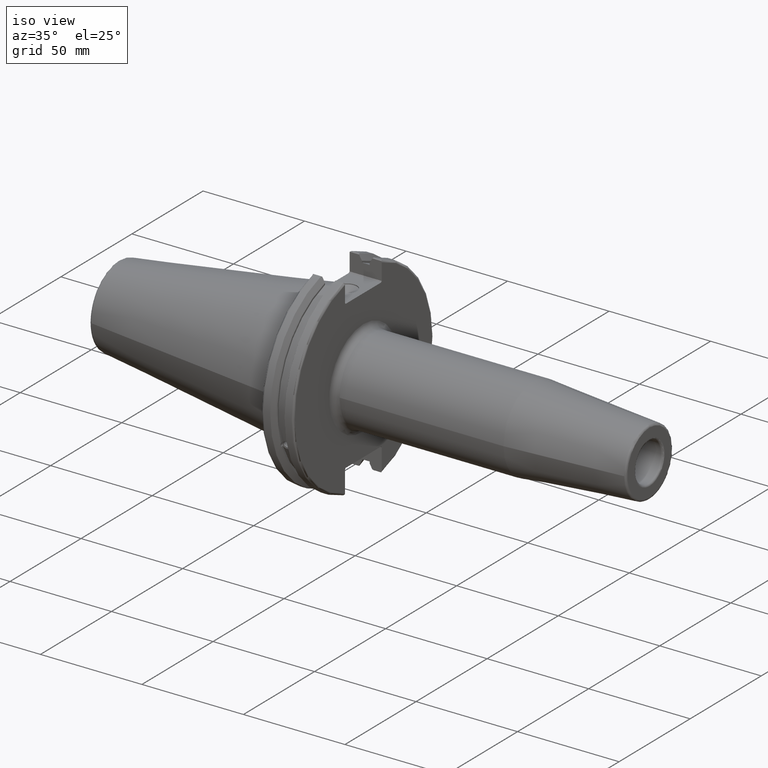
[diagram: clean part render]
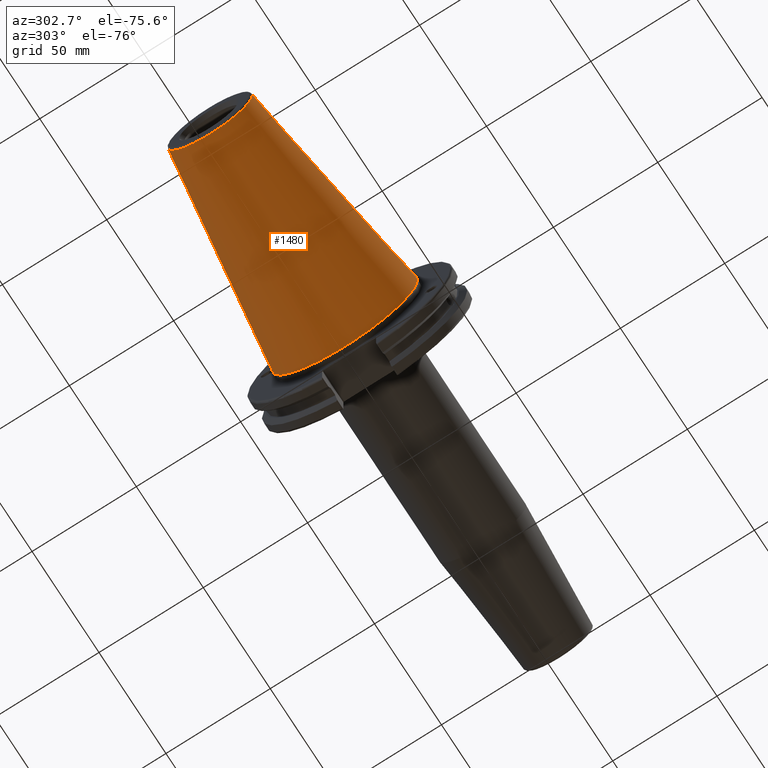
[diagram: tour spotlight — one face highlighted and labeled with its STEP entity id]
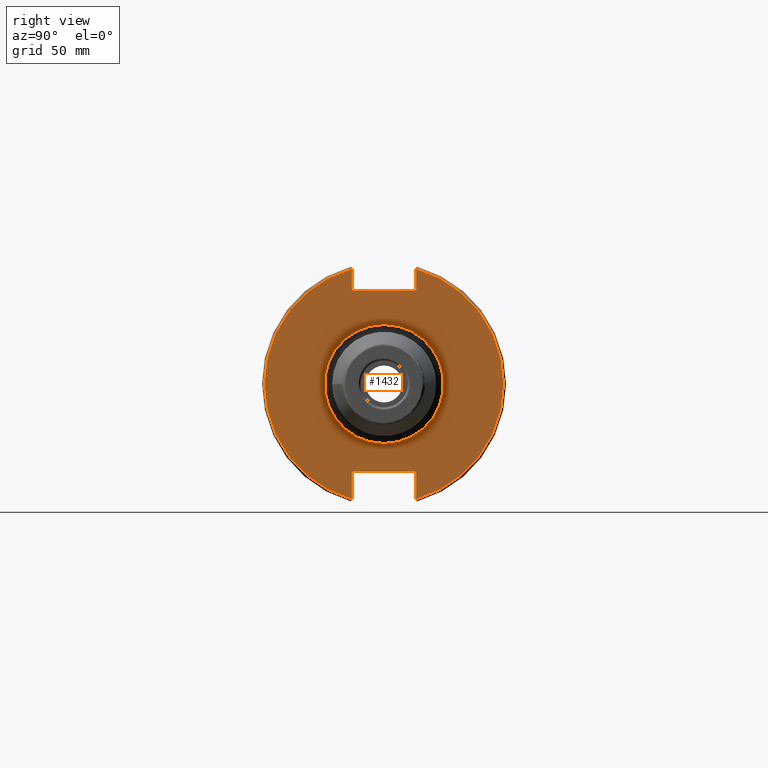
[diagram: tour spotlight — one face highlighted and labeled with its STEP entity id]
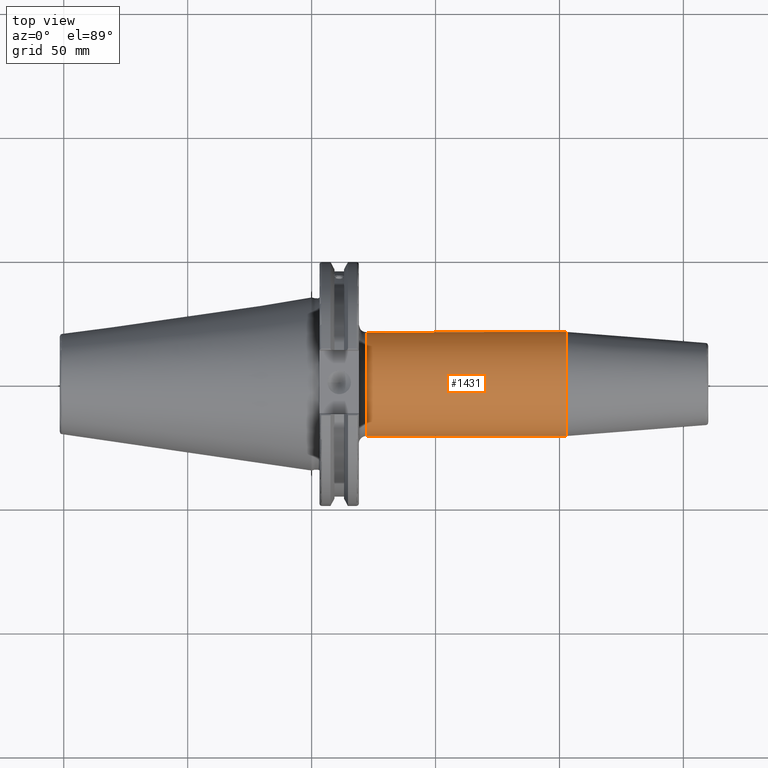
[diagram: tour spotlight — one face highlighted and labeled with its STEP entity id]
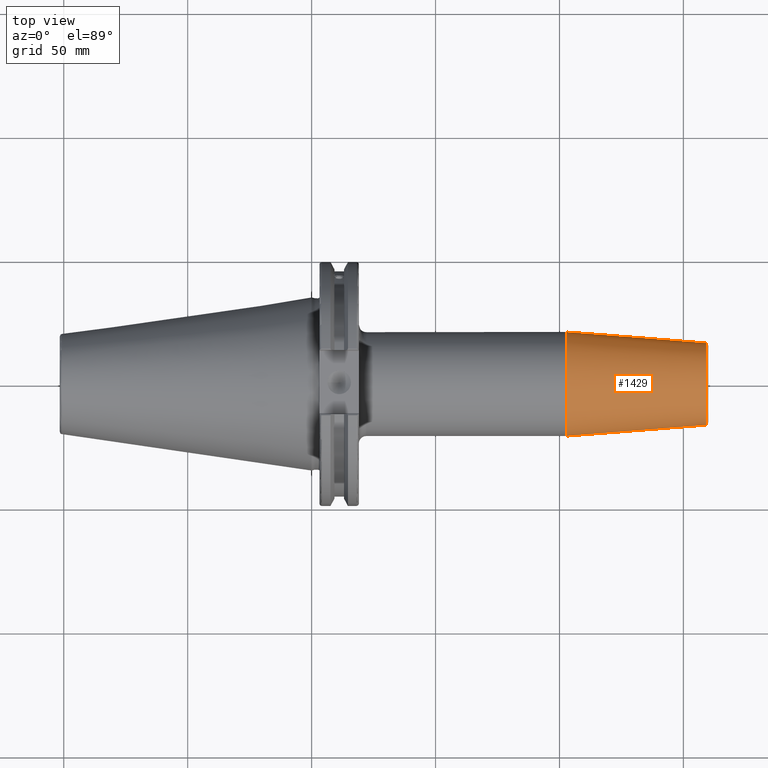
[diagram: tour spotlight — one face highlighted and labeled with its STEP entity id]
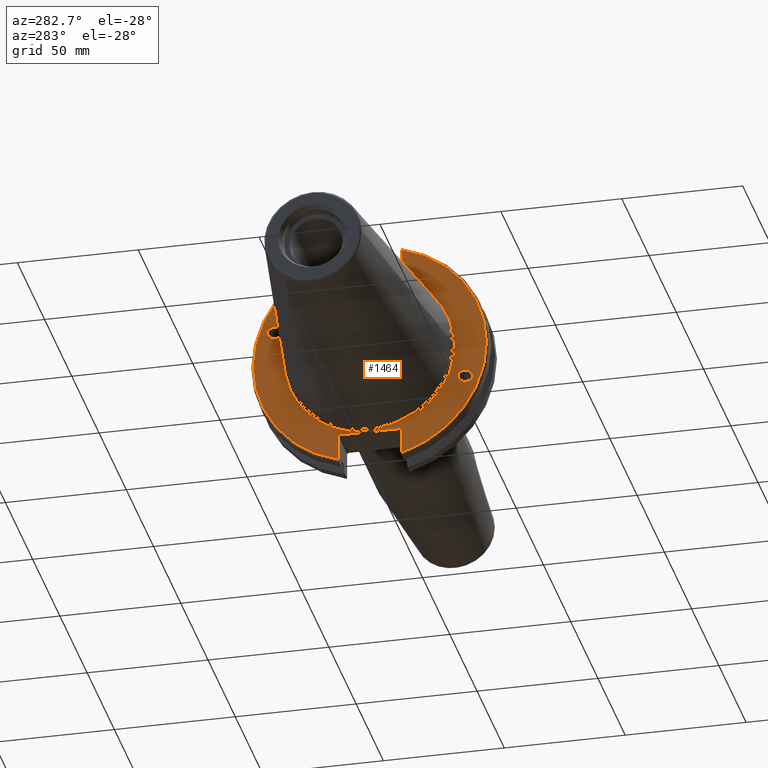
[diagram: tour spotlight — one face highlighted and labeled with its STEP entity id]
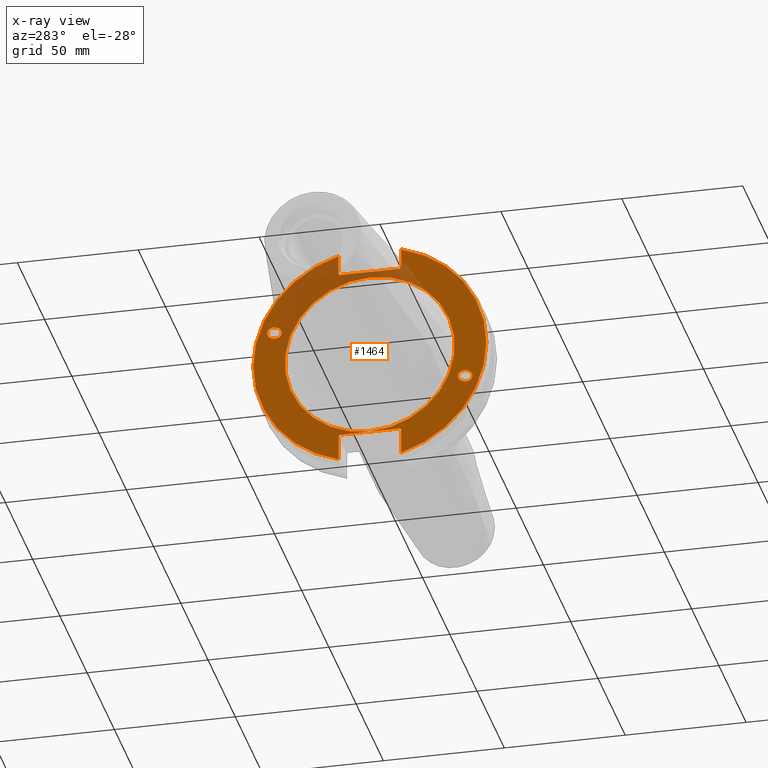
[diagram: x-ray of the same camera — body ghosted, this tour face saturated]
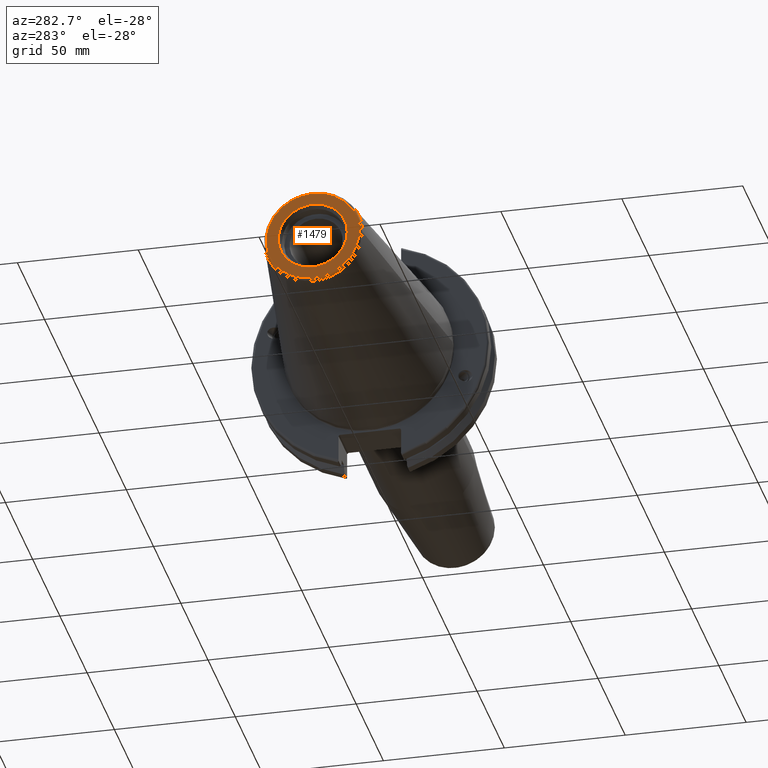
[diagram: tour spotlight — one face highlighted and labeled with its STEP entity id]
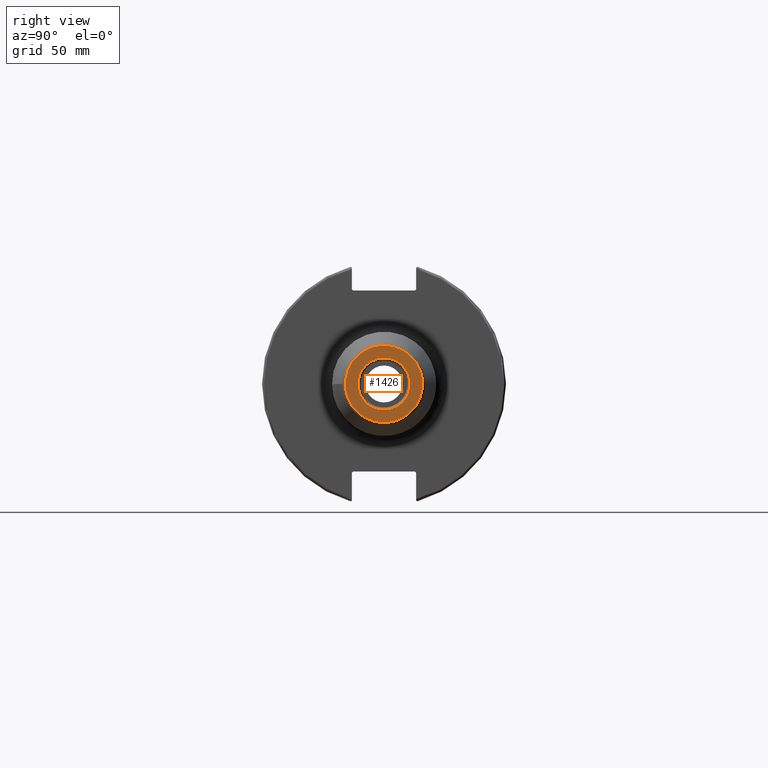
[diagram: tour spotlight — one face highlighted and labeled with its STEP entity id]
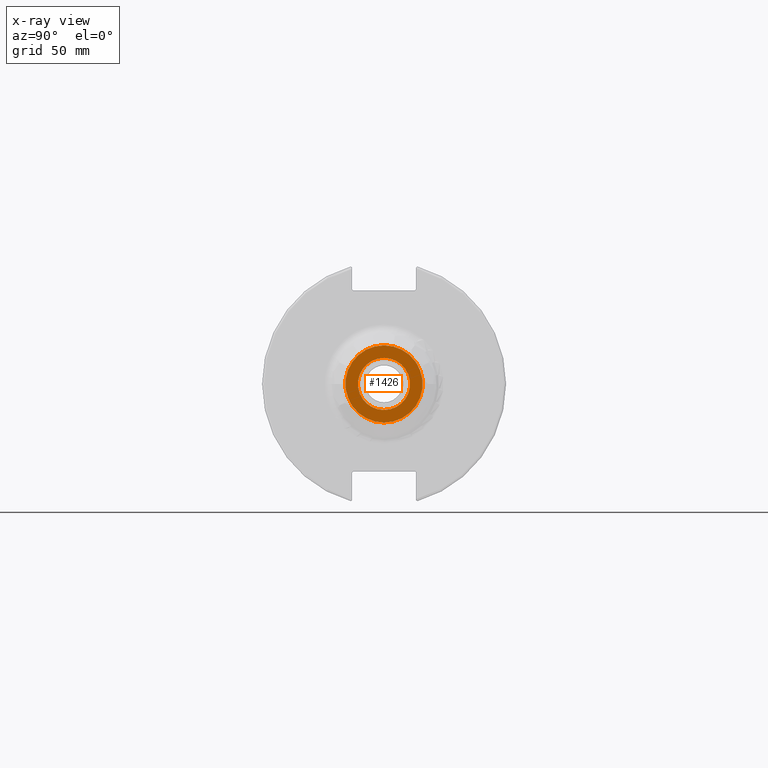
[diagram: x-ray of the same camera — body ghosted, this tour face saturated]
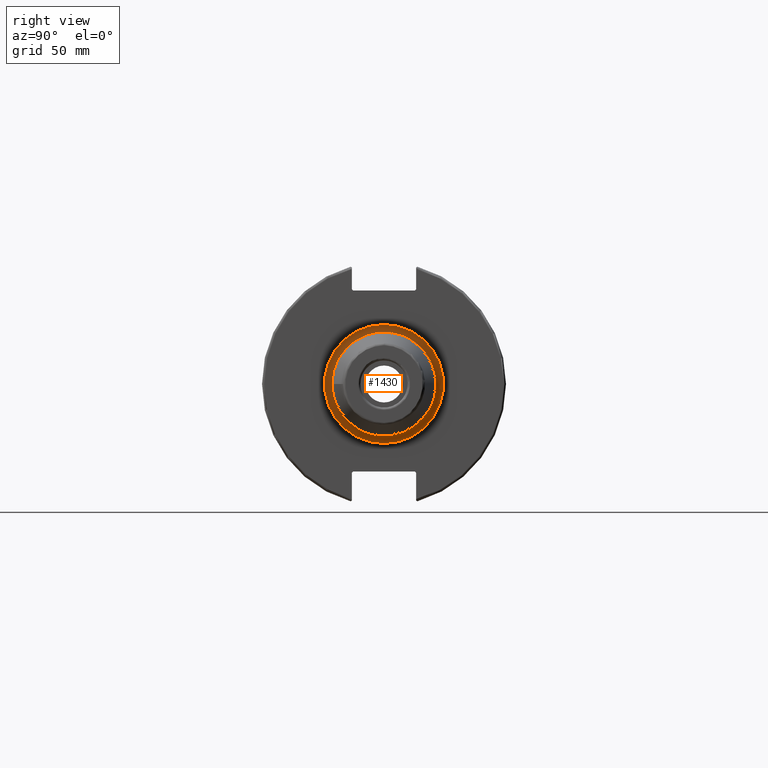
[diagram: tour spotlight — one face highlighted and labeled with its STEP entity id]
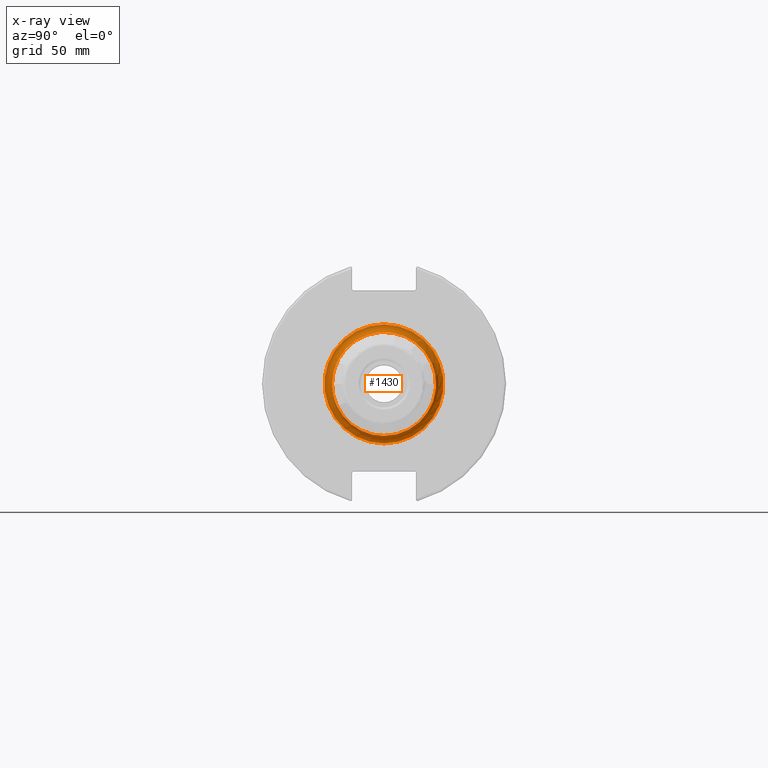
[diagram: x-ray of the same camera — body ghosted, this tour face saturated]
A machine part: a face-by-face anatomy tour. The part has 84 B-rep faces; the first image is the clean iso view, then the 8 largest visible faces are spotlighted one at a time (largest first), each with its STEP entity span.

Face 1 — auxiliary view, entity #1480. In plain terms, the highlighted conical surface has half-angle 8.297 deg.
Definition (entity closure, byte-faithful):
#77=CONICAL_SURFACE('',#1651,27.5166666666666,0.14481249823894);
#153=LINE('',#2954,#243);
#243=VECTOR('',#2006,27.5166666666666);
#401=FACE_OUTER_BOUND('',#503,.T.);
#503=EDGE_LOOP('',(#1284,#1285,#1286,#1287,#1288));
#591=CIRCLE('',#1645,20.233121911427);
#592=CIRCLE('',#1646,20.233121911427);
#596=CIRCLE('',#1652,34.925);
#741=VERTEX_POINT('',#2941);
#742=VERTEX_POINT('',#2942);
#745=VERTEX_POINT('',#2952);
#937=EDGE_CURVE('',#741,#742,#591,.T.);
#938=EDGE_CURVE('',#742,#741,#592,.T.);
#942=EDGE_CURVE('',#745,#745,#596,.T.);
#943=EDGE_CURVE('',#745,#742,#153,.T.);
#1284=ORIENTED_EDGE('',*,*,#942,.F.);
#1285=ORIENTED_EDGE('',*,*,#943,.T.);
#1286=ORIENTED_EDGE('',*,*,#937,.F.);
#1287=ORIENTED_EDGE('',*,*,#938,.F.);
#1288=ORIENTED_EDGE('',*,*,#943,.F.);
#1480=ADVANCED_FACE('',(#401),#77,.T.);
#1645=AXIS2_PLACEMENT_3D('',#2943,#1990,#1991);
#1646=AXIS2_PLACEMENT_3D('',#2944,#1992,#1993);
#1651=AXIS2_PLACEMENT_3D('',#2951,#2002,#2003);
#1652=AXIS2_PLACEMENT_3D('',#2953,#2004,#2005);
#1990=DIRECTION('center_axis',(-1.,0.,0.));
#1991=DIRECTION('ref_axis',(0.,-1.,3.06161699786838E-17));
#1992=DIRECTION('center_axis',(-1.,0.,0.));
#1993=DIRECTION('ref_axis',(0.,-1.,3.06161699786838E-17));
#2002=DIRECTION('center_axis',(1.,0.,0.));
#2003=DIRECTION('ref_axis',(0.,1.,0.));
#2004=DIRECTION('center_axis',(1.,0.,0.));
#2005=DIRECTION('ref_axis',(0.,0.,-1.));
#2006=DIRECTION('',(-0.989532981063281,0.144306893071729,1.76724974695192E-17));
#2941=CARTESIAN_POINT('',(-100.744306893072,-2.47784279855872E-15,20.233121911427));
#2942=CARTESIAN_POINT('',(-100.744306893072,-20.233121911427,-2.47784279855872E-15));
#2943=CARTESIAN_POINT('Origin',(-100.744306893072,0.,-3.09730349819841E-15));
#2944=CARTESIAN_POINT('Origin',(-100.744306893072,0.,-3.09730349819841E-15));
#2951=CARTESIAN_POINT('Origin',(-50.8,0.,0.));
#2952=CARTESIAN_POINT('',(-8.88178419700125E-15,-34.925,-4.27707894602213E-15));
#2953=CARTESIAN_POINT('Origin',(0.,0.,0.));
#2954=CARTESIAN_POINT('',(-50.8,-27.5166666666666,-3.3698197756538E-15));

Face 2 — right view, entity #1432. In plain terms, the highlighted planar face has unit normal (1, 0, 0).
Definition (entity closure, byte-faithful):
#86=LINE('',#2145,#176);
#87=LINE('',#2147,#177);
#88=LINE('',#2149,#178);
#89=LINE('',#2151,#179);
#90=LINE('',#2153,#180);
#91=LINE('',#2157,#181);
#92=LINE('',#2159,#182);
#93=LINE('',#2161,#183);
#94=LINE('',#2163,#184);
#95=LINE('',#2164,#185);
#176=VECTOR('',#1743,10.);
#177=VECTOR('',#1744,10.);
#178=VECTOR('',#1745,10.);
#179=VECTOR('',#1746,10.);
#180=VECTOR('',#1747,10.);
#181=VECTOR('',#1750,10.);
#182=VECTOR('',#1751,10.);
#183=VECTOR('',#1752,10.);
#184=VECTOR('',#1753,10.);
#185=VECTOR('',#1754,10.);
#290=FACE_BOUND('',#439,.T.);
#310=PLANE('',#1553);
#353=FACE_OUTER_BOUND('',#438,.T.);
#438=EDGE_LOOP('',(#1008,#1009,#1010,#1011,#1012,#1013,#1014,#1015,#1016,
#1017,#1018,#1019));
#439=EDGE_LOOP('',(#1020));
#546=CIRCLE('',#1550,24.);
#548=CIRCLE('',#1554,48.2125);
#549=CIRCLE('',#1555,48.2125);
#618=VERTEX_POINT('',#2134);
#619=VERTEX_POINT('',#2141);
#620=VERTEX_POINT('',#2142);
#621=VERTEX_POINT('',#2144);
#622=VERTEX_POINT('',#2146);
#623=VERTEX_POINT('',#2148);
#624=VERTEX_POINT('',#2150);
#625=VERTEX_POINT('',#2152);
#626=VERTEX_POINT('',#2154);
#627=VERTEX_POINT('',#2156);
#628=VERTEX_POINT('',#2158);
#629=VERTEX_POINT('',#2160);
#630=VERTEX_POINT('',#2162);
#770=EDGE_CURVE('',#618,#618,#546,.T.);
#773=EDGE_CURVE('',#619,#620,#548,.T.);
#774=EDGE_CURVE('',#619,#621,#86,.T.);
#775=EDGE_CURVE('',#622,#621,#87,.T.);
#776=EDGE_CURVE('',#622,#623,#88,.T.);
#777=EDGE_CURVE('',#624,#623,#89,.T.);
#778=EDGE_CURVE('',#624,#625,#90,.T.);
#779=EDGE_CURVE('',#626,#625,#549,.T.);
#780=EDGE_CURVE('',#626,#627,#91,.T.);
#781=EDGE_CURVE('',#628,#627,#92,.T.);
#782=EDGE_CURVE('',#628,#629,#93,.T.);
#783=EDGE_CURVE('',#630,#629,#94,.T.);
#784=EDGE_CURVE('',#630,#620,#95,.T.);
#1008=ORIENTED_EDGE('',*,*,#773,.F.);
#1009=ORIENTED_EDGE('',*,*,#774,.T.);
#1010=ORIENTED_EDGE('',*,*,#775,.F.);
#1011=ORIENTED_EDGE('',*,*,#776,.T.);
#1012=ORIENTED_EDGE('',*,*,#777,.F.);
#1013=ORIENTED_EDGE('',*,*,#778,.T.);
#1014=ORIENTED_EDGE('',*,*,#779,.F.);
#1015=ORIENTED_EDGE('',*,*,#780,.T.);
#1016=ORIENTED_EDGE('',*,*,#781,.F.);
#1017=ORIENTED_EDGE('',*,*,#782,.T.);
#1018=ORIENTED_EDGE('',*,*,#783,.F.);
#1019=ORIENTED_EDGE('',*,*,#784,.T.);
#1020=ORIENTED_EDGE('',*,*,#770,.F.);
#1432=ADVANCED_FACE('',(#353,#290),#310,.T.);
#1550=AXIS2_PLACEMENT_3D('',#2136,#1732,#1733);
#1553=AXIS2_PLACEMENT_3D('',#2140,#1739,#1740);
#1554=AXIS2_PLACEMENT_3D('',#2143,#1741,#1742);
#1555=AXIS2_PLACEMENT_3D('',#2155,#1748,#1749);
#1732=DIRECTION('center_axis',(1.,0.,0.));
#1733=DIRECTION('ref_axis',(0.,-1.,-1.22464679914735E-16));
#1739=DIRECTION('center_axis',(1.,0.,0.));
#1740=DIRECTION('ref_axis',(0.,0.,-1.));
#1741=DIRECTION('center_axis',(-1.,0.,0.));
#1742=DIRECTION('ref_axis',(0.,1.,-6.12323399573677E-17));
#1743=DIRECTION('',(0.,0.,-1.));
#1744=DIRECTION('',(0.,0.707106781186549,0.707106781186546));
#1745=DIRECTION('',(0.,-1.,0.));
#1746=DIRECTION('',(0.,0.707106781186549,-0.707106781186546));
#1747=DIRECTION('',(0.,0.,1.));
#1748=DIRECTION('center_axis',(-1.,0.,0.));
#1749=DIRECTION('ref_axis',(0.,-1.,1.60812264967664E-16));
#1750=DIRECTION('',(0.,0.,1.));
#1751=DIRECTION('',(0.,-0.707106781186549,-0.707106781186546));
#1752=DIRECTION('',(0.,1.,0.));
#1753=DIRECTION('',(0.,-0.707106781186549,0.707106781186546));
#1754=DIRECTION('',(0.,0.,-1.));
#2134=CARTESIAN_POINT('',(19.05,-2.93915231795365E-15,-24.));
#2136=CARTESIAN_POINT('Origin',(19.05,0.,0.));
#2140=CARTESIAN_POINT('Origin',(19.05,0.,0.));
#2141=CARTESIAN_POINT('',(19.05,12.95,46.4407434937254));
#2142=CARTESIAN_POINT('',(19.05,12.95,-46.4407434937254));
#2143=CARTESIAN_POINT('Origin',(19.05,0.,0.));
#2144=CARTESIAN_POINT('',(19.05,12.95,38.219));
#2145=CARTESIAN_POINT('',(19.05,12.95,18.8595));
#2146=CARTESIAN_POINT('',(19.05,12.45,37.719));
#2147=CARTESIAN_POINT('',(19.05,0.0327499999999836,25.30175));
#2148=CARTESIAN_POINT('',(19.05,-12.45,37.719));
#2149=CARTESIAN_POINT('',(19.05,0.,37.719));
#2150=CARTESIAN_POINT('',(19.05,-12.95,38.219));
#2151=CARTESIAN_POINT('',(19.05,-0.0327499999999817,25.30175));
#2152=CARTESIAN_POINT('',(19.05,-12.95,46.4407434937254));
#2153=CARTESIAN_POINT('',(19.05,-12.95,18.8595));
#2154=CARTESIAN_POINT('',(19.05,-12.95,-46.4407434937254));
#2155=CARTESIAN_POINT('Origin',(19.05,0.,0.));
#2156=CARTESIAN_POINT('',(19.05,-12.95,-35.806));
#2157=CARTESIAN_POINT('',(19.05,-12.95,-17.653));
#2158=CARTESIAN_POINT('',(19.05,-12.45,-35.306));
#2159=CARTESIAN_POINT('',(19.05,-0.635999999999989,-23.492));
#2160=CARTESIAN_POINT('',(19.05,12.45,-35.306));
#2161=CARTESIAN_POINT('',(19.05,-3.33066907387547E-15,-35.306));
#2162=CARTESIAN_POINT('',(19.05,12.95,-35.806));
#2163=CARTESIAN_POINT('',(19.05,0.635999999999982,-23.492));
#2164=CARTESIAN_POINT('',(19.05,12.95,-17.653));

Face 3 — top view, entity #1431. In plain terms, the highlighted cylindrical surface (bore or boss wall) has radius 21 mm, axis along (1, 0, 0).
Definition (entity closure, byte-faithful):
#85=LINE('',#2139,#175);
#175=VECTOR('',#1738,21.);
#264=CYLINDRICAL_SURFACE('',#1552,21.);
#352=FACE_OUTER_BOUND('',#437,.T.);
#437=EDGE_LOOP('',(#1003,#1004,#1005,#1006,#1007));
#543=CIRCLE('',#1546,21.);
#544=CIRCLE('',#1548,21.);
#547=CIRCLE('',#1551,21.);
#615=VERTEX_POINT('',#2127);
#616=VERTEX_POINT('',#2131);
#617=VERTEX_POINT('',#2132);
#767=EDGE_CURVE('',#615,#615,#543,.T.);
#768=EDGE_CURVE('',#616,#617,#544,.T.);
#771=EDGE_CURVE('',#617,#616,#547,.T.);
#772=EDGE_CURVE('',#615,#616,#85,.T.);
#1003=ORIENTED_EDGE('',*,*,#767,.F.);
#1004=ORIENTED_EDGE('',*,*,#772,.T.);
#1005=ORIENTED_EDGE('',*,*,#771,.F.);
#1006=ORIENTED_EDGE('',*,*,#768,.F.);
#1007=ORIENTED_EDGE('',*,*,#772,.F.);
#1431=ADVANCED_FACE('',(#352),#264,.T.);
#1546=AXIS2_PLACEMENT_3D('',#2129,#1724,#1725);
#1548=AXIS2_PLACEMENT_3D('',#2133,#1728,#1729);
#1551=AXIS2_PLACEMENT_3D('',#2137,#1734,#1735);
#1552=AXIS2_PLACEMENT_3D('',#2138,#1736,#1737);
#1724=DIRECTION('center_axis',(1.,0.,0.));
#1725=DIRECTION('ref_axis',(0.,0.,-1.));
#1728=DIRECTION('center_axis',(-1.,0.,0.));
#1729=DIRECTION('ref_axis',(0.,-1.,-1.22464679914735E-16));
#1734=DIRECTION('center_axis',(-1.,0.,0.));
#1735=DIRECTION('ref_axis',(0.,-1.,-1.22464679914735E-16));
#1736=DIRECTION('center_axis',(1.,0.,0.));
#1737=DIRECTION('ref_axis',(0.,1.,0.));
#1738=DIRECTION('',(-1.,0.,0.));
#2127=CARTESIAN_POINT('',(102.822078687213,-21.,-2.57175827820944E-15));
#2129=CARTESIAN_POINT('Origin',(102.822078687213,0.,0.));
#2131=CARTESIAN_POINT('',(22.05,-21.,-2.57175827820944E-15));
#2132=CARTESIAN_POINT('',(22.05,-2.57175827820944E-15,-21.));
#2133=CARTESIAN_POINT('Origin',(22.05,0.,0.));
#2137=CARTESIAN_POINT('Origin',(22.05,0.,0.));
#2138=CARTESIAN_POINT('Origin',(60.9360393436067,0.,0.));
#2139=CARTESIAN_POINT('',(60.9360393436067,-21.,-2.57175827820944E-15));

Face 4 — top view, entity #1429. In plain terms, the highlighted conical surface has half-angle 4.5 deg.
Definition (entity closure, byte-faithful):
#71=CONICAL_SURFACE('',#1545,18.75,0.0785398163397444);
#84=LINE('',#2128,#174);
#174=VECTOR('',#1723,18.75);
#350=FACE_OUTER_BOUND('',#435,.T.);
#435=EDGE_LOOP('',(#993,#994,#995,#996,#997));
#541=CIRCLE('',#1543,16.5725268420749);
#542=CIRCLE('',#1544,16.5725268420749);
#543=CIRCLE('',#1546,21.);
#613=VERTEX_POINT('',#2121);
#614=VERTEX_POINT('',#2123);
#615=VERTEX_POINT('',#2127);
#764=EDGE_CURVE('',#613,#614,#541,.T.);
#765=EDGE_CURVE('',#614,#613,#542,.T.);
#766=EDGE_CURVE('',#614,#615,#84,.T.);
#767=EDGE_CURVE('',#615,#615,#543,.T.);
#993=ORIENTED_EDGE('',*,*,#765,.F.);
#994=ORIENTED_EDGE('',*,*,#766,.T.);
#995=ORIENTED_EDGE('',*,*,#767,.T.);
#996=ORIENTED_EDGE('',*,*,#766,.F.);
#997=ORIENTED_EDGE('',*,*,#764,.F.);
#1429=ADVANCED_FACE('',(#350),#71,.T.);
#1543=AXIS2_PLACEMENT_3D('',#2124,#1717,#1718);
#1544=AXIS2_PLACEMENT_3D('',#2125,#1719,#1720);
#1545=AXIS2_PLACEMENT_3D('',#2126,#1721,#1722);
#1546=AXIS2_PLACEMENT_3D('',#2129,#1724,#1725);
#1717=DIRECTION('center_axis',(1.,0.,0.));
#1718=DIRECTION('ref_axis',(0.,-1.,3.06161699786838E-17));
#1719=DIRECTION('center_axis',(1.,0.,0.));
#1720=DIRECTION('ref_axis',(0.,-1.,3.06161699786838E-17));
#1721=DIRECTION('center_axis',(-1.,0.,0.));
#1722=DIRECTION('ref_axis',(0.,1.,0.));
#1723=DIRECTION('',(-0.996917333733128,-0.0784590957278445,-9.60846804471006E-18));
#1724=DIRECTION('center_axis',(1.,0.,0.));
#1725=DIRECTION('ref_axis',(0.,0.,-1.));
#2121=CARTESIAN_POINT('',(159.078459095728,-2.02954919509306E-15,16.5725268420749));
#2123=CARTESIAN_POINT('',(159.078459095728,-16.5725268420749,-2.02954919509306E-15));
#2124=CARTESIAN_POINT('Origin',(159.078459095728,0.,-2.53693649386633E-15));
#2125=CARTESIAN_POINT('Origin',(159.078459095728,0.,-2.53693649386633E-15));
#2126=CARTESIAN_POINT('Origin',(131.411039343607,0.,0.));
#2127=CARTESIAN_POINT('',(102.822078687213,-21.,-2.57175827820944E-15));
#2128=CARTESIAN_POINT('',(131.411039343607,-18.75,-2.29621274840129E-15));
#2129=CARTESIAN_POINT('Origin',(102.822078687213,0.,0.));

Face 5 — auxiliary view, entity #1464. An x-ray twin of the same camera follows (body ghosted, this face saturated) — the face is partly hidden behind the body. In plain terms, the highlighted planar face has unit normal (-1, 0, 0).
Definition (entity closure, byte-faithful):
#31=ELLIPSE('',#1582,3.05193647190364,2.5);
#32=ELLIPSE('',#1616,3.05193647190364,2.5);
#126=LINE('',#2728,#216);
#127=LINE('',#2730,#217);
#128=LINE('',#2732,#218);
#129=LINE('',#2734,#219);
#130=LINE('',#2736,#220);
#131=LINE('',#2740,#221);
#132=LINE('',#2742,#222);
#133=LINE('',#2744,#223);
#134=LINE('',#2746,#224);
#135=LINE('',#2747,#225);
#216=VECTOR('',#1921,10.);
#217=VECTOR('',#1922,10.);
#218=VECTOR('',#1923,10.);
#219=VECTOR('',#1924,10.);
#220=VECTOR('',#1925,10.);
#221=VECTOR('',#1928,10.);
#222=VECTOR('',#1929,10.);
#223=VECTOR('',#1930,10.);
#224=VECTOR('',#1931,10.);
#225=VECTOR('',#1932,10.);
#303=FACE_BOUND('',#484,.T.);
#304=FACE_BOUND('',#485,.T.);
#305=FACE_BOUND('',#486,.T.);
#321=PLANE('',#1622);
#385=FACE_OUTER_BOUND('',#483,.T.);
#483=EDGE_LOOP('',(#1177,#1178,#1179,#1180,#1181,#1182,#1183,#1184,#1185,
#1186,#1187,#1188));
#484=EDGE_LOOP('',(#1189));
#485=EDGE_LOOP('',(#1190));
#486=EDGE_LOOP('',(#1191));
#581=CIRCLE('',#1620,35.125);
#583=CIRCLE('',#1623,48.2125);
#584=CIRCLE('',#1624,48.2125);
#661=VERTEX_POINT('',#2453);
#699=VERTEX_POINT('',#2712);
#702=VERTEX_POINT('',#2719);
#703=VERTEX_POINT('',#2724);
#704=VERTEX_POINT('',#2725);
#705=VERTEX_POINT('',#2727);
#706=VERTEX_POINT('',#2729);
#707=VERTEX_POINT('',#2731);
#708=VERTEX_POINT('',#2733);
#709=VERTEX_POINT('',#2735);
#710=VERTEX_POINT('',#2737);
#711=VERTEX_POINT('',#2739);
#712=VERTEX_POINT('',#2741);
#713=VERTEX_POINT('',#2743);
#714=VERTEX_POINT('',#2745);
#824=EDGE_CURVE('',#661,#661,#31,.T.);
#875=EDGE_CURVE('',#699,#699,#32,.T.);
#878=EDGE_CURVE('',#702,#702,#581,.T.);
#880=EDGE_CURVE('',#703,#704,#583,.T.);
#881=EDGE_CURVE('',#703,#705,#126,.T.);
#882=EDGE_CURVE('',#706,#705,#127,.T.);
#883=EDGE_CURVE('',#706,#707,#128,.T.);
#884=EDGE_CURVE('',#708,#707,#129,.T.);
#885=EDGE_CURVE('',#708,#709,#130,.T.);
#886=EDGE_CURVE('',#710,#709,#584,.T.);
#887=EDGE_CURVE('',#710,#711,#131,.T.);
#888=EDGE_CURVE('',#712,#711,#132,.T.);
#889=EDGE_CURVE('',#712,#713,#133,.T.);
#890=EDGE_CURVE('',#714,#713,#134,.T.);
#891=EDGE_CURVE('',#714,#704,#135,.T.);
#1177=ORIENTED_EDGE('',*,*,#880,.F.);
#1178=ORIENTED_EDGE('',*,*,#881,.T.);
#1179=ORIENTED_EDGE('',*,*,#882,.F.);
#1180=ORIENTED_EDGE('',*,*,#883,.T.);
#1181=ORIENTED_EDGE('',*,*,#884,.F.);
#1182=ORIENTED_EDGE('',*,*,#885,.T.);
#1183=ORIENTED_EDGE('',*,*,#886,.F.);
#1184=ORIENTED_EDGE('',*,*,#887,.T.);
#1185=ORIENTED_EDGE('',*,*,#888,.F.);
#1186=ORIENTED_EDGE('',*,*,#889,.T.);
#1187=ORIENTED_EDGE('',*,*,#890,.F.);
#1188=ORIENTED_EDGE('',*,*,#891,.T.);
#1189=ORIENTED_EDGE('',*,*,#824,.T.);
#1190=ORIENTED_EDGE('',*,*,#875,.T.);
#1191=ORIENTED_EDGE('',*,*,#878,.F.);
#1464=ADVANCED_FACE('',(#385,#303,#304,#305),#321,.T.);
#1582=AXIS2_PLACEMENT_3D('',#2455,#1821,#1822);
#1616=AXIS2_PLACEMENT_3D('',#2714,#1905,#1906);
#1620=AXIS2_PLACEMENT_3D('',#2721,#1913,#1914);
#1622=AXIS2_PLACEMENT_3D('',#2723,#1917,#1918);
#1623=AXIS2_PLACEMENT_3D('',#2726,#1919,#1920);
#1624=AXIS2_PLACEMENT_3D('',#2738,#1926,#1927);
#1821=DIRECTION('center_axis',(1.,0.,0.));
#1822=DIRECTION('ref_axis',(0.,-0.939692620785908,-0.342020143325668));
#1905=DIRECTION('center_axis',(1.,0.,0.));
#1906=DIRECTION('ref_axis',(0.,0.939692620785908,0.342020143325669));
#1913=DIRECTION('center_axis',(-1.,0.,0.));
#1914=DIRECTION('ref_axis',(0.,-1.,1.83697019872103E-16));
#1917=DIRECTION('center_axis',(-1.,0.,0.));
#1918=DIRECTION('ref_axis',(0.,0.,1.));
#1919=DIRECTION('center_axis',(1.,0.,0.));
#1920=DIRECTION('ref_axis',(0.,-1.,1.60812264967664E-16));
#1921=DIRECTION('',(0.,0.,-1.));
#1922=DIRECTION('',(0.,-0.707106781186549,0.707106781186546));
#1923=DIRECTION('',(0.,1.,0.));
#1924=DIRECTION('',(0.,-0.707106781186549,-0.707106781186546));
#1925=DIRECTION('',(0.,0.,1.));
#1926=DIRECTION('center_axis',(1.,0.,0.));
#1927=DIRECTION('ref_axis',(0.,1.,-6.12323399573677E-17));
#1928=DIRECTION('',(0.,0.,1.));
#1929=DIRECTION('',(0.,0.707106781186549,-0.707106781186546));
#1930=DIRECTION('',(0.,-1.,0.));
#1931=DIRECTION('',(0.,0.707106781186549,0.707106781186546));
#1932=DIRECTION('',(0.,0.,-1.));
#2453=CARTESIAN_POINT('',(3.175,-36.5992078912529,-13.3210222701368));
#2455=CARTESIAN_POINT('Origin',(3.175,-39.4670900730082,-14.3648460196781));
#2712=CARTESIAN_POINT('',(3.175,36.5992078912529,13.3210222701368));
#2714=CARTESIAN_POINT('Origin',(3.175,39.4670900730082,14.3648460196781));
#2719=CARTESIAN_POINT('',(3.175,-4.30157188200508E-15,35.125));
#2721=CARTESIAN_POINT('Origin',(3.175,0.,0.));
#2723=CARTESIAN_POINT('Origin',(3.175,49.2125,0.));
#2724=CARTESIAN_POINT('',(3.175,-12.95,46.4407434937254));
#2725=CARTESIAN_POINT('',(3.175,-12.95,-46.4407434937254));
#2726=CARTESIAN_POINT('Origin',(3.175,0.,0.));
#2727=CARTESIAN_POINT('',(3.175,-12.95,38.219));
#2728=CARTESIAN_POINT('',(3.175,-12.95,18.8595));
#2729=CARTESIAN_POINT('',(3.175,-12.45,37.719));
#2730=CARTESIAN_POINT('',(3.175,12.2703750000001,12.998625));
#2731=CARTESIAN_POINT('',(3.175,12.45,37.719));
#2732=CARTESIAN_POINT('',(3.175,24.60625,37.719));
#2733=CARTESIAN_POINT('',(3.175,12.95,38.219));
#2734=CARTESIAN_POINT('',(3.175,12.335875,37.604875));
#2735=CARTESIAN_POINT('',(3.175,12.95,46.4407434937254));
#2736=CARTESIAN_POINT('',(3.175,12.95,18.8595));
#2737=CARTESIAN_POINT('',(3.175,12.95,-46.4407434937254));
#2738=CARTESIAN_POINT('Origin',(3.175,0.,0.));
#2739=CARTESIAN_POINT('',(3.175,12.95,-35.806));
#2740=CARTESIAN_POINT('',(3.175,12.95,-17.653));
#2741=CARTESIAN_POINT('',(3.175,12.45,-35.306));
#2742=CARTESIAN_POINT('',(3.175,12.939125,-35.795125));
#2743=CARTESIAN_POINT('',(3.175,-12.45,-35.306));
#2744=CARTESIAN_POINT('',(3.175,24.60625,-35.306));
#2745=CARTESIAN_POINT('',(3.175,-12.95,-35.806));
#2746=CARTESIAN_POINT('',(3.175,11.6671250000001,-11.188875));
#2747=CARTESIAN_POINT('',(3.175,-12.95,-17.653));

Face 6 — auxiliary view, entity #1479. In plain terms, the highlighted planar face has unit normal (-1, 0, 0).
Definition (entity closure, byte-faithful):
#306=FACE_BOUND('',#502,.T.);
#329=PLANE('',#1649);
#400=FACE_OUTER_BOUND('',#501,.T.);
#501=EDGE_LOOP('',(#1282));
#502=EDGE_LOOP('',(#1283));
#594=CIRCLE('',#1648,19.2435889303637);
#595=CIRCLE('',#1650,14.2875);
#743=VERTEX_POINT('',#2945);
#744=VERTEX_POINT('',#2949);
#940=EDGE_CURVE('',#743,#743,#594,.T.);
#941=EDGE_CURVE('',#744,#744,#595,.T.);
#1282=ORIENTED_EDGE('',*,*,#940,.F.);
#1283=ORIENTED_EDGE('',*,*,#941,.T.);
#1479=ADVANCED_FACE('',(#400,#306),#329,.T.);
#1648=AXIS2_PLACEMENT_3D('',#2947,#1996,#1997);
#1649=AXIS2_PLACEMENT_3D('',#2948,#1998,#1999);
#1650=AXIS2_PLACEMENT_3D('',#2950,#2000,#2001);
#1996=DIRECTION('center_axis',(1.,0.,0.));
#1997=DIRECTION('ref_axis',(0.,-1.,1.83697019872103E-16));
#1998=DIRECTION('center_axis',(-1.,0.,0.));
#1999=DIRECTION('ref_axis',(0.,0.,1.));
#2000=DIRECTION('center_axis',(1.,0.,0.));
#2001=DIRECTION('ref_axis',(0.,0.,-1.));
#2945=CARTESIAN_POINT('',(-101.6,-2.35665995876774E-15,19.2435889303637));
#2947=CARTESIAN_POINT('Origin',(-101.6,0.,0.));
#2948=CARTESIAN_POINT('Origin',(-101.6,20.1083333333333,0.));
#2949=CARTESIAN_POINT('',(-101.6,-14.2875,-1.74971411428178E-15));
#2950=CARTESIAN_POINT('Origin',(-101.6,0.,0.));

Face 7 — right view, entity #1426. An x-ray twin of the same camera follows (body ghosted, this face saturated) — the face is partly hidden behind the body. In plain terms, the highlighted planar face has unit normal (1, 0, 0).
Definition (entity closure, byte-faithful):
#289=FACE_BOUND('',#432,.T.);
#309=PLANE('',#1537);
#347=FACE_OUTER_BOUND('',#431,.T.);
#431=EDGE_LOOP('',(#981));
#432=EDGE_LOOP('',(#982));
#537=CIRCLE('',#1536,10.525);
#538=CIRCLE('',#1538,15.5756095083418);
#610=VERTEX_POINT('',#2110);
#611=VERTEX_POINT('',#2114);
#759=EDGE_CURVE('',#610,#610,#537,.T.);
#760=EDGE_CURVE('',#611,#611,#538,.T.);
#981=ORIENTED_EDGE('',*,*,#760,.F.);
#982=ORIENTED_EDGE('',*,*,#759,.F.);
#1426=ADVANCED_FACE('',(#347,#289),#309,.T.);
#1536=AXIS2_PLACEMENT_3D('',#2112,#1702,#1703);
#1537=AXIS2_PLACEMENT_3D('',#2113,#1704,#1705);
#1538=AXIS2_PLACEMENT_3D('',#2115,#1706,#1707);
#1702=DIRECTION('center_axis',(1.,0.,0.));
#1703=DIRECTION('ref_axis',(0.,-1.,1.83697019872103E-16));
#1704=DIRECTION('center_axis',(1.,0.,0.));
#1705=DIRECTION('ref_axis',(0.,0.,-1.));
#1706=DIRECTION('center_axis',(-1.,0.,0.));
#1707=DIRECTION('ref_axis',(0.,-1.,1.83697019872103E-16));
#2110=CARTESIAN_POINT('',(160.,-1.28894075610259E-15,10.525));
#2112=CARTESIAN_POINT('Origin',(160.,0.,0.));
#2113=CARTESIAN_POINT('Origin',(160.,9.52500000000001,0.));
#2114=CARTESIAN_POINT('',(160.,-1.90746203291599E-15,15.5756095083418));
#2115=CARTESIAN_POINT('Origin',(160.,0.,0.));

Face 8 — right view, entity #1430. An x-ray twin of the same camera follows (body ghosted, this face saturated) — the face is partly hidden behind the body. In plain terms, the highlighted toroidal blend (fillet) surface has major radius 24 mm and minor (blend) radius 3 mm.
Definition (entity closure, byte-faithful):
#351=FACE_OUTER_BOUND('',#436,.T.);
#436=EDGE_LOOP('',(#998,#999,#1000,#1001,#1002));
#544=CIRCLE('',#1548,21.);
#545=CIRCLE('',#1549,3.);
#546=CIRCLE('',#1550,24.);
#547=CIRCLE('',#1551,21.);
#616=VERTEX_POINT('',#2131);
#617=VERTEX_POINT('',#2132);
#618=VERTEX_POINT('',#2134);
#768=EDGE_CURVE('',#616,#617,#544,.T.);
#769=EDGE_CURVE('',#617,#618,#545,.T.);
#770=EDGE_CURVE('',#618,#618,#546,.T.);
#771=EDGE_CURVE('',#617,#616,#547,.T.);
#998=ORIENTED_EDGE('',*,*,#768,.T.);
#999=ORIENTED_EDGE('',*,*,#769,.T.);
#1000=ORIENTED_EDGE('',*,*,#770,.T.);
#1001=ORIENTED_EDGE('',*,*,#769,.F.);
#1002=ORIENTED_EDGE('',*,*,#771,.T.);
#1418=TOROIDAL_SURFACE('',#1547,24.,3.);
#1430=ADVANCED_FACE('',(#351),#1418,.F.);
#1547=AXIS2_PLACEMENT_3D('',#2130,#1726,#1727);
#1548=AXIS2_PLACEMENT_3D('',#2133,#1728,#1729);
#1549=AXIS2_PLACEMENT_3D('',#2135,#1730,#1731);
#1550=AXIS2_PLACEMENT_3D('',#2136,#1732,#1733);
#1551=AXIS2_PLACEMENT_3D('',#2137,#1734,#1735);
#1726=DIRECTION('center_axis',(-1.,0.,0.));
#1727=DIRECTION('ref_axis',(0.,0.,1.));
#1728=DIRECTION('center_axis',(-1.,0.,0.));
#1729=DIRECTION('ref_axis',(0.,-1.,-1.22464679914735E-16));
#1730=DIRECTION('center_axis',(0.,-1.,1.22464679914735E-16));
#1731=DIRECTION('ref_axis',(0.,-1.22464679914735E-16,-1.));
#1732=DIRECTION('center_axis',(1.,0.,0.));
#1733=DIRECTION('ref_axis',(0.,-1.,-1.22464679914735E-16));
#1734=DIRECTION('center_axis',(-1.,0.,0.));
#1735=DIRECTION('ref_axis',(0.,-1.,-1.22464679914735E-16));
#2130=CARTESIAN_POINT('Origin',(22.05,0.,0.));
#2131=CARTESIAN_POINT('',(22.05,-21.,-2.57175827820944E-15));
#2132=CARTESIAN_POINT('',(22.05,-2.57175827820944E-15,-21.));
#2133=CARTESIAN_POINT('Origin',(22.05,0.,0.));
#2134=CARTESIAN_POINT('',(19.05,-2.93915231795365E-15,-24.));
#2135=CARTESIAN_POINT('Origin',(22.05,-2.93915231795365E-15,-24.));
#2136=CARTESIAN_POINT('Origin',(19.05,0.,0.));
#2137=CARTESIAN_POINT('Origin',(22.05,0.,0.));